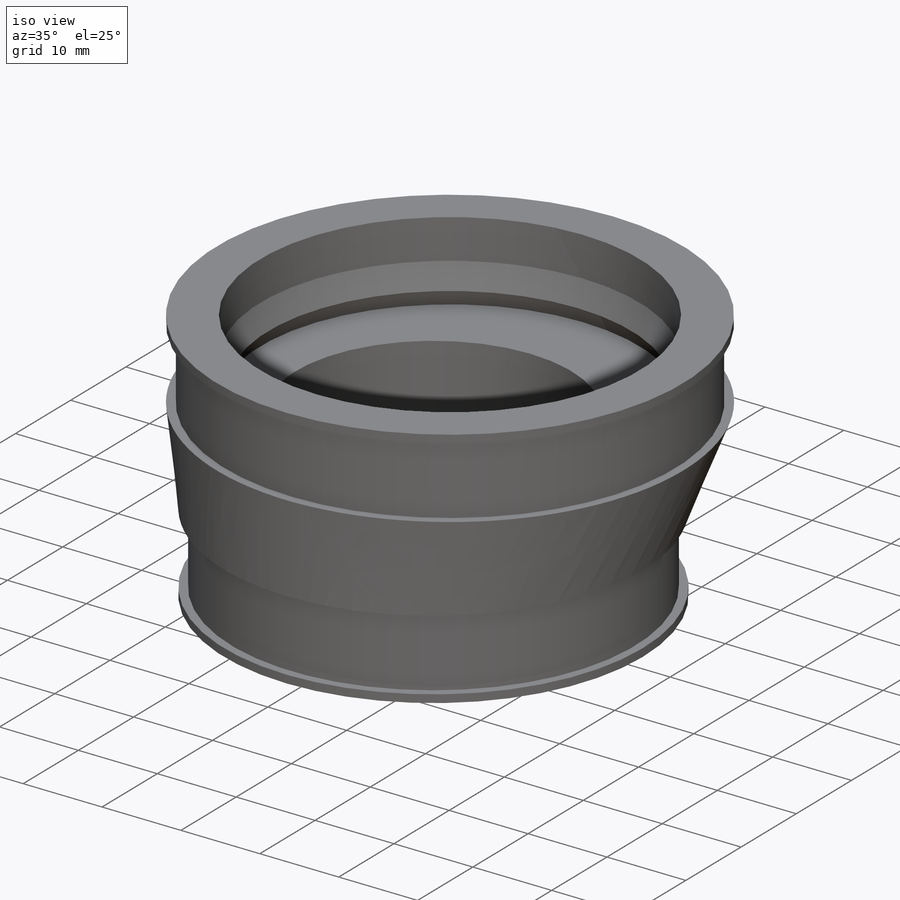
[diagram: iso view]
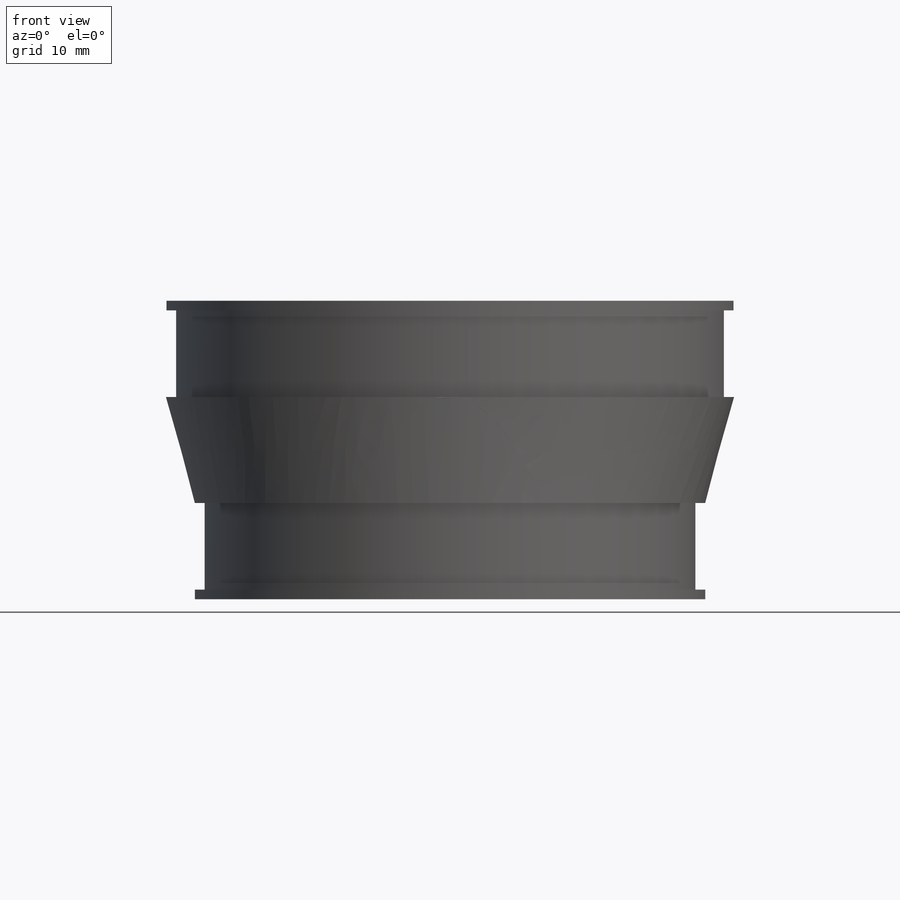
[diagram: front view]
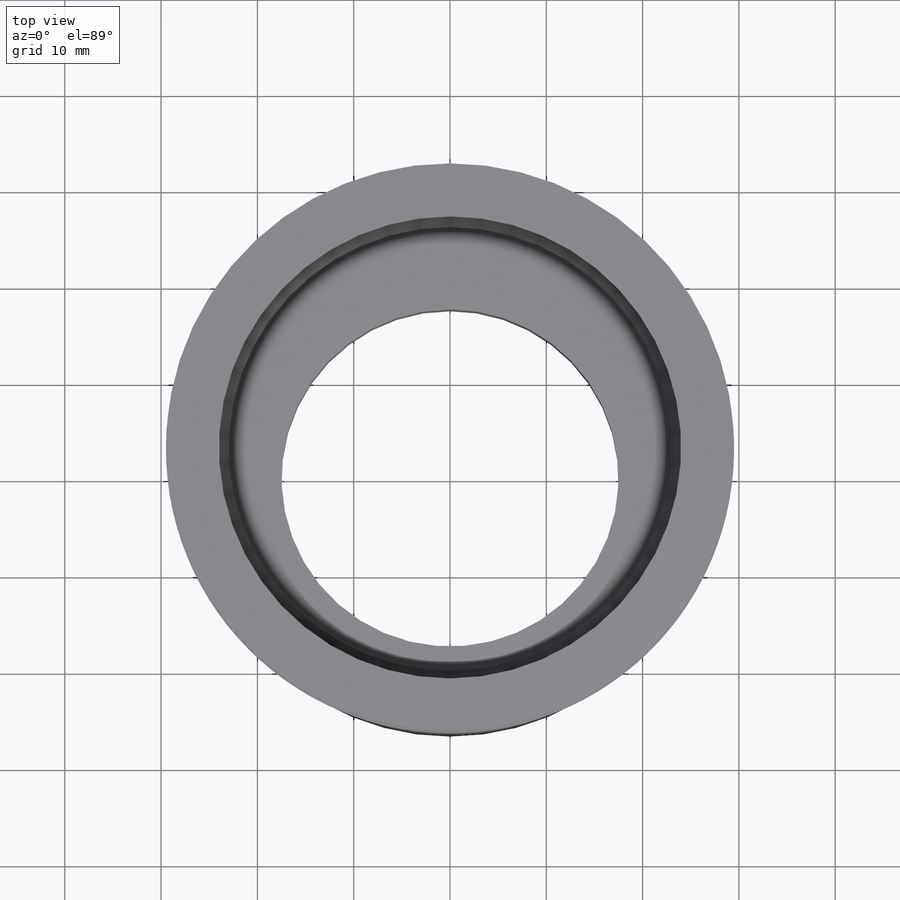
[diagram: top view]
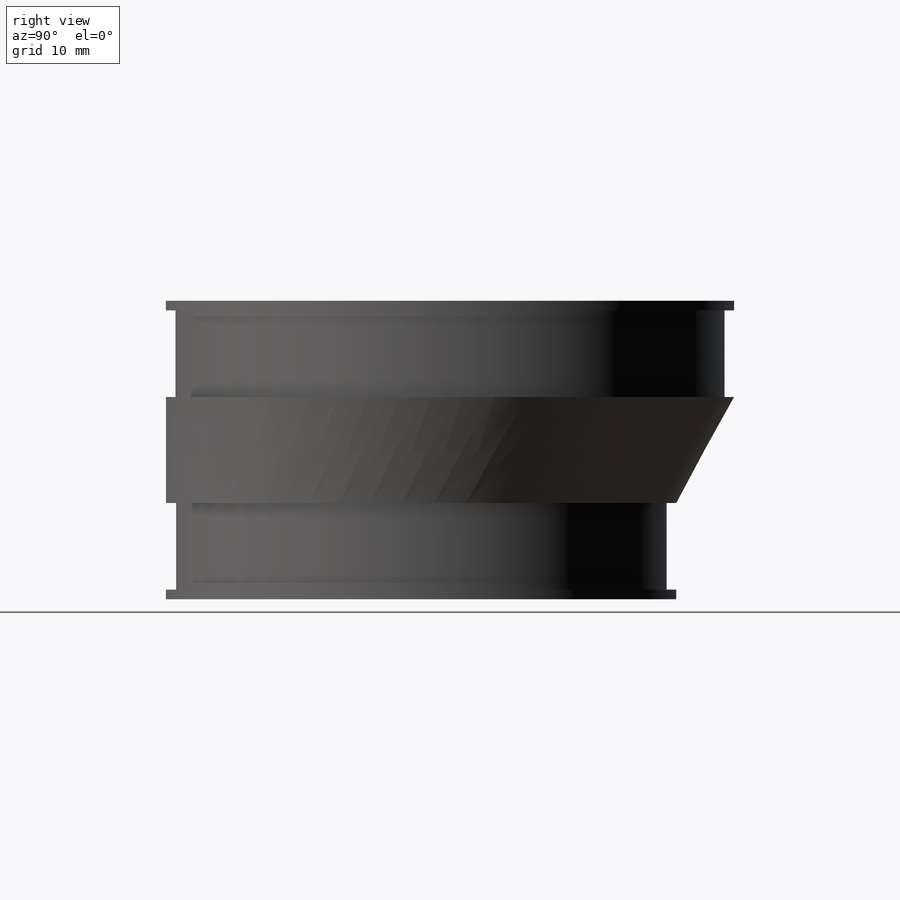
[diagram: right view]
SOLIDWORKS PART (.sldprt)
format: sldprt  version: not decoded by parser v0  size: 266,240 bytes
history: native  units: mm
features: sketch x6, revolve x2, material x1, cut_extrude x1 (+11 scaffold rows collapsed)
feature tree (21):
  scaffold x11  (default folders/planes/origin — collapsed)
  material  "Rubber"
  sketch  "Sketch1"  dims[D1=1.0mm D2=21.0mm D3=5.5mm D4=1.0mm D5=9.0mm D6=1.0mm D7=5.0mm D8=20.0mm D9=2.0mm D10=10.0mm D11=11.0mm D12=17.5mm]
  revolve  "Revolve1"  Angle=360deg
  sketch  "Sketch2"  dims[D1=9.0mm D2=3.0mm D3=1.0mm D4=1.0mm D5=24.0mm D6=5.0mm D7=23.0mm D8=3.0mm]
  revolve  "Revolve2"  Angle=360deg
  sketch  "Sketch4"
  sketch  "Sketch5"
  sketch  "Sketch6"  dims[D1=59.0mm D2=3.0mm]
  sketch  "Sketch7"  dims[D1=35.0mm]
  cut_extrude  "Extrude1"  [1 undecoded]
decode coverage: 6 of 9 modeling features carry decoded parameters
note: 1 parameter value undecoded
note: suppression state not decoded; provenance and decode notes live in map.json
